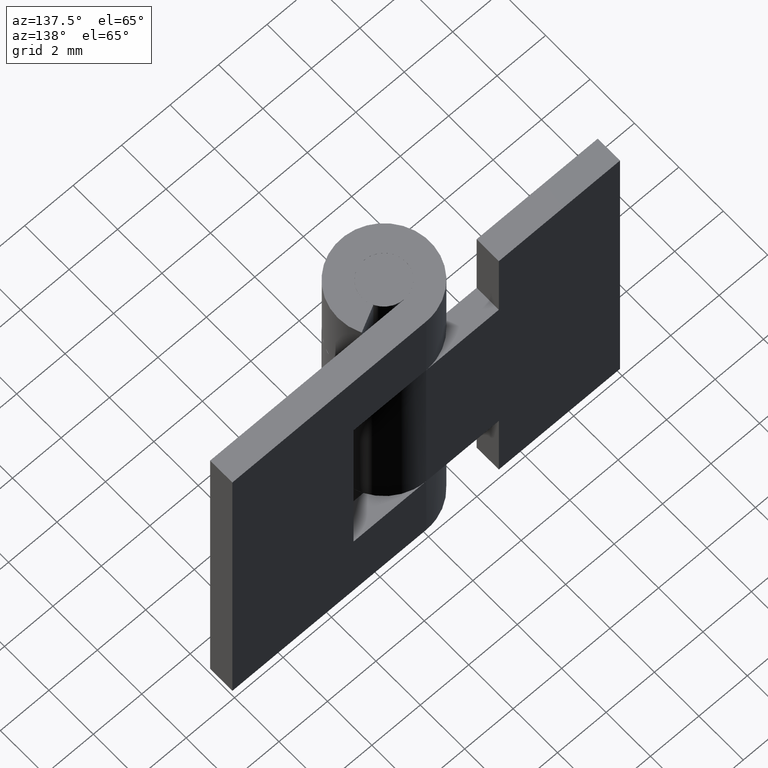
[diagram: clean part render]
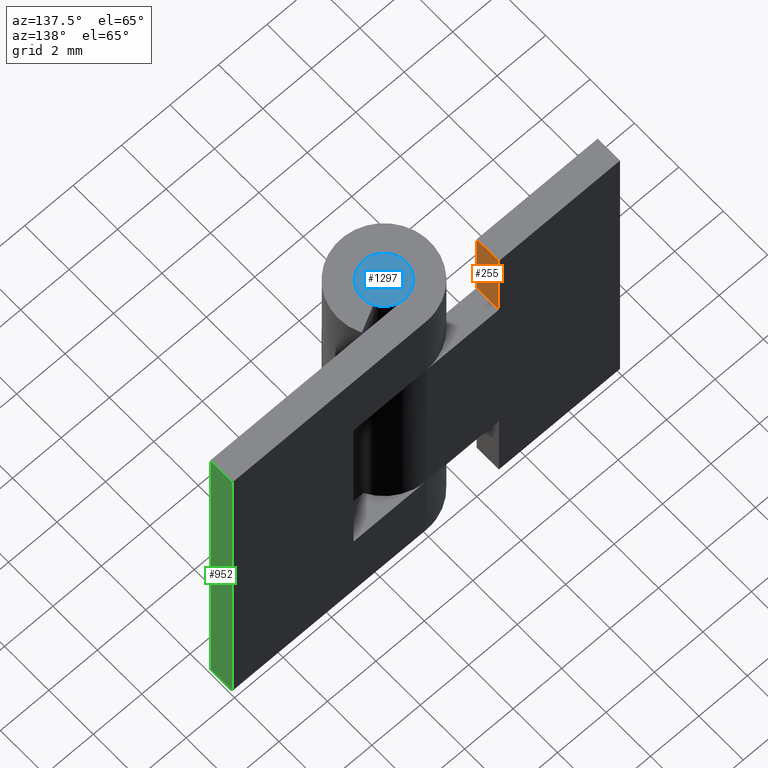
[diagram: same view with three faces highlighted in distinct colors, each labeled with its STEP entity id]
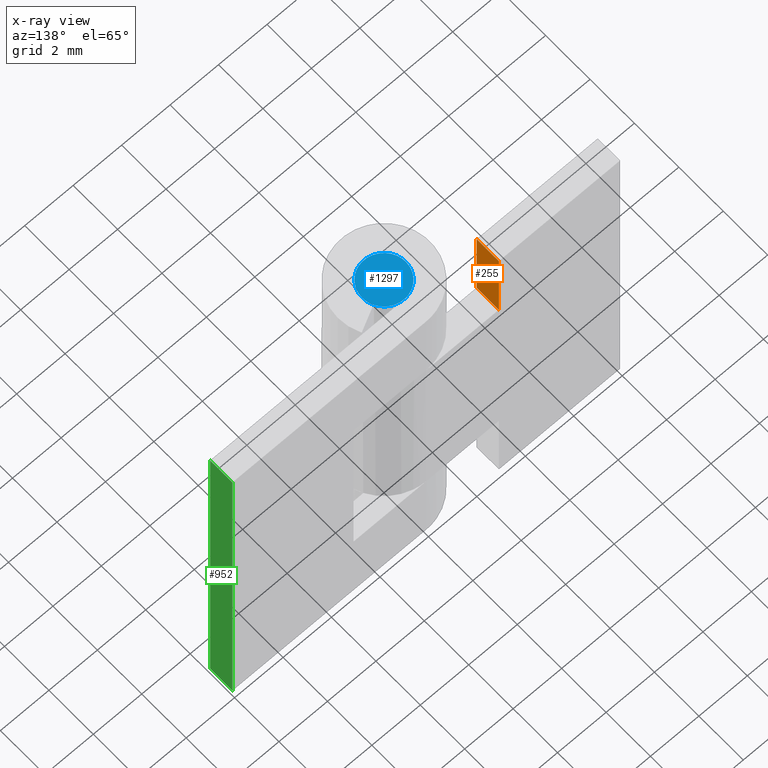
[diagram: x-ray of the same camera — body ghosted, the three highlighted faces saturated]
A machine part, auxiliary view with three faces highlighted in distinct colors.
The next image is the same camera in x-ray (body ghosted, the three faces saturated) — at least one of them is partly hidden behind the body in this view.
Their STEP definitions:

[orange] entity #255 — the highlighted face is a freeform B-spline surface patch.
#155=CARTESIAN_POINT('',(-3.0,1.900001999999955,11.500000000000000));
#156=VERTEX_POINT('',#155);
#164=CARTESIAN_POINT('',(-3.0,0.900001999999955,11.500000000000000));
#165=VERTEX_POINT('',#164);
#166=CARTESIAN_POINT('',(-3.0,0.900001999999955,11.500000000000000));
#167=CARTESIAN_POINT('',(-3.0,1.900001999999955,11.500000000000000));
#168=QUASI_UNIFORM_CURVE('',1,(#166,#167),.UNSPECIFIED.,.F.,.U.);
#169=EDGE_CURVE('',#165,#156,#168,.T.);
#228=CARTESIAN_POINT('',(-3.0,0.850052001938147,15.174824993216321));
#229=CARTESIAN_POINT('',(-3.0,0.850052001938147,11.325174912906361));
#230=CARTESIAN_POINT('',(-3.0,1.949952024883898,15.174824993216321));
#231=CARTESIAN_POINT('',(-3.0,1.949952024883898,11.325174912906361));
#232=B_SPLINE_SURFACE_WITH_KNOTS('',1,1,((#228,#230),(#229,#231)),.UNSPECIFIED.,.F.,.F.,.U.,(2,2),(2,2),(0.0,3.849650080309958),(0.041708334948495,0.958291687403247),.UNSPECIFIED.);
#233=ORIENTED_EDGE('',*,*,#169,.T.);
#234=CARTESIAN_POINT('',(-3.0,1.900002000000000,15.0));
#235=VERTEX_POINT('',#234);
#236=CARTESIAN_POINT('',(-3.0,1.900002000000000,15.0));
#237=CARTESIAN_POINT('',(-3.0,1.900001999999955,11.500000000000000));
#238=QUASI_UNIFORM_CURVE('',1,(#236,#237),.UNSPECIFIED.,.F.,.U.);
#239=EDGE_CURVE('',#235,#156,#238,.T.);
#240=ORIENTED_EDGE('',*,*,#239,.F.);
#241=CARTESIAN_POINT('',(-3.0,0.900001999999955,15.0));
#242=VERTEX_POINT('',#241);
#243=CARTESIAN_POINT('',(-3.0,0.900001999999955,15.0));
#244=CARTESIAN_POINT('',(-3.0,1.900002000000000,15.0));
#245=QUASI_UNIFORM_CURVE('',1,(#243,#244),.UNSPECIFIED.,.F.,.U.);
#246=EDGE_CURVE('',#242,#235,#245,.T.);
#247=ORIENTED_EDGE('',*,*,#246,.F.);
#248=CARTESIAN_POINT('',(-3.0,0.900001999999955,11.500000000000000));
#249=CARTESIAN_POINT('',(-3.0,0.900001999999955,15.0));
#250=QUASI_UNIFORM_CURVE('',1,(#248,#249),.UNSPECIFIED.,.F.,.U.);
#251=EDGE_CURVE('',#165,#242,#250,.T.);
#252=ORIENTED_EDGE('',*,*,#251,.F.);
#253=EDGE_LOOP('',(#233,#240,#247,#252));
#254=FACE_OUTER_BOUND('',#253,.T.);
#255=ADVANCED_FACE('',(#254),#232,.T.);

[blue] entity #1297 — the highlighted face is a freeform B-spline surface patch.
#1129=CARTESIAN_POINT('',(0.106230811220151,-0.893708573723844,15.0));
#1130=VERTEX_POINT('',#1129);
#1136=CARTESIAN_POINT('',(-0.900000000000000,0.0,15.0));
#1137=VERTEX_POINT('',#1136);
#1138=CARTESIAN_POINT('',(0.106230811220151,-0.893708573723844,15.000000000000002));
#1139=CARTESIAN_POINT('',(0.053301707716095,-0.900000000000000,15.0));
#1140=CARTESIAN_POINT('',(0.0,-0.900000000000000,15.0));
#1141=CARTESIAN_POINT('',(-0.900000000000000,-0.900000000000000,14.999999999999996));
#1142=CARTESIAN_POINT('',(-0.900000000000000,0.0,15.0));
#1150=(BOUNDED_CURVE()B_SPLINE_CURVE(2,(#1138,#1139,#1140,#1141,#1142),.UNSPECIFIED.,.F.,.U.)B_SPLINE_CURVE_WITH_KNOTS((3,2,3),(0.229562473504650,0.250000000000000,0.500000000000000),.UNSPECIFIED.)CURVE()GEOMETRIC_REPRESENTATION_ITEM()RATIONAL_B_SPLINE_CURVE((0.956026754166337,0.976055948320767,1.0,0.707106781186547,1.0))REPRESENTATION_ITEM(''));
#1151=EDGE_CURVE('',#1130,#1137,#1150,.T.);
#1153=CARTESIAN_POINT('',(-0.054943685588979,0.898321318579215,15.0));
#1154=VERTEX_POINT('',#1153);
#1155=CARTESIAN_POINT('',(-0.900000000000000,0.0,15.0));
#1156=CARTESIAN_POINT('',(-0.900000000000000,0.846635460200755,15.000000000000004));
#1157=CARTESIAN_POINT('',(-0.054943685588979,0.898321318579215,15.000000000000004));
#1165=(BOUNDED_CURVE()B_SPLINE_CURVE(2,(#1155,#1156,#1157),.UNSPECIFIED.,.F.,.U.)B_SPLINE_CURVE_WITH_KNOTS((3,3),(0.500000000000000,0.739332962239045),.UNSPECIFIED.)CURVE()GEOMETRIC_REPRESENTATION_ITEM()RATIONAL_B_SPLINE_CURVE((1.0,0.719603993286591,0.976072041666937))REPRESENTATION_ITEM(''));
#1166=EDGE_CURVE('',#1137,#1154,#1165,.T.);
#1240=CARTESIAN_POINT('',(0.900000000000000,0.0,15.0));
#1241=VERTEX_POINT('',#1240);
#1242=CARTESIAN_POINT('',(-0.054943685588979,0.898321318579215,15.000000000000002));
#1243=CARTESIAN_POINT('',(-0.027497486976359,0.900000000000000,15.000000000000004));
#1244=CARTESIAN_POINT('',(0.0,0.900000000000000,15.0));
#1245=CARTESIAN_POINT('',(0.900000000000000,0.900000000000000,14.999999999999996));
#1246=CARTESIAN_POINT('',(0.900000000000000,0.0,15.0));
#1254=(BOUNDED_CURVE()B_SPLINE_CURVE(2,(#1242,#1243,#1244,#1245,#1246),.UNSPECIFIED.,.F.,.U.)B_SPLINE_CURVE_WITH_KNOTS((3,2,3),(0.739332962239046,0.750000000000000,1.0),.UNSPECIFIED.)CURVE()GEOMETRIC_REPRESENTATION_ITEM()RATIONAL_B_SPLINE_CURVE((0.976072041666938,0.987502787899958,1.0,0.707106781186547,1.0))REPRESENTATION_ITEM(''));
#1255=EDGE_CURVE('',#1154,#1241,#1254,.T.);
#1257=CARTESIAN_POINT('',(0.900000000000000,0.0,15.0));
#1258=CARTESIAN_POINT('',(0.900000000000000,-0.799357073303865,14.999999999999996));
#1259=CARTESIAN_POINT('',(0.106230811220151,-0.893708573723844,15.000000000000002));
#1267=(BOUNDED_CURVE()B_SPLINE_CURVE(2,(#1257,#1258,#1259),.UNSPECIFIED.,.F.,.U.)B_SPLINE_CURVE_WITH_KNOTS((3,3),(0.0,0.229562473504650),.UNSPECIFIED.)CURVE()GEOMETRIC_REPRESENTATION_ITEM()RATIONAL_B_SPLINE_CURVE((1.0,0.731050832865780,0.956026754166337))REPRESENTATION_ITEM(''));
#1268=EDGE_CURVE('',#1241,#1130,#1267,.T.);
#1286=CARTESIAN_POINT('',(-0.989909973183274,-0.989893627390592,15.0));
#1287=CARTESIAN_POINT('',(0.989909908810258,-0.989893627390592,15.0));
#1288=CARTESIAN_POINT('',(-0.989909973183274,0.989888091311185,15.0));
#1289=CARTESIAN_POINT('',(0.989909908810258,0.989888091311185,15.0));
#1290=B_SPLINE_SURFACE_WITH_KNOTS('',1,1,((#1286,#1288),(#1287,#1289)),.UNSPECIFIED.,.F.,.F.,.U.,(2,2),(2,2),(0.0,1.979819881993532),(0.0,1.979781718701777),.UNSPECIFIED.);
#1291=ORIENTED_EDGE('',*,*,#1255,.F.);
#1292=ORIENTED_EDGE('',*,*,#1166,.F.);
#1293=ORIENTED_EDGE('',*,*,#1151,.F.);
#1294=ORIENTED_EDGE('',*,*,#1268,.F.);
#1295=EDGE_LOOP('',(#1291,#1292,#1293,#1294));
#1296=FACE_OUTER_BOUND('',#1295,.T.);
#1297=ADVANCED_FACE('',(#1296),#1290,.T.);

[green] entity #952 — the highlighted face is a freeform B-spline surface patch.
#674=CARTESIAN_POINT('',(8.0,1.900002000000000,0.0));
#675=VERTEX_POINT('',#674);
#681=CARTESIAN_POINT('',(8.0,0.900002000000000,0.0));
#682=VERTEX_POINT('',#681);
#683=CARTESIAN_POINT('',(8.0,1.900002000000000,0.0));
#684=CARTESIAN_POINT('',(8.0,0.900002000000000,0.0));
#685=QUASI_UNIFORM_CURVE('',1,(#683,#684),.UNSPECIFIED.,.F.,.U.);
#686=EDGE_CURVE('',#675,#682,#685,.T.);
#752=CARTESIAN_POINT('',(8.0,1.900002000000000,15.0));
#753=VERTEX_POINT('',#752);
#808=CARTESIAN_POINT('',(8.0,0.900002000000000,15.0));
#809=VERTEX_POINT('',#808);
#815=CARTESIAN_POINT('',(8.0,1.900002000000000,15.0));
#816=CARTESIAN_POINT('',(8.0,0.900002000000000,15.0));
#817=QUASI_UNIFORM_CURVE('',1,(#815,#816),.UNSPECIFIED.,.F.,.U.);
#818=EDGE_CURVE('',#753,#809,#817,.T.);
#923=CARTESIAN_POINT('',(8.0,0.900002000000000,15.0));
#924=CARTESIAN_POINT('',(8.0,0.900002000000000,0.0));
#925=QUASI_UNIFORM_CURVE('',1,(#923,#924),.UNSPECIFIED.,.F.,.U.);
#926=EDGE_CURVE('',#809,#682,#925,.T.);
#937=CARTESIAN_POINT('',(8.0,0.850052001938194,15.749249970927091));
#938=CARTESIAN_POINT('',(8.0,0.850052001938194,-0.749250373258442));
#939=CARTESIAN_POINT('',(8.0,1.949952024883896,15.749249970927091));
#940=CARTESIAN_POINT('',(8.0,1.949952024883896,-0.749250373258442));
#941=B_SPLINE_SURFACE_WITH_KNOTS('',1,1,((#937,#939),(#938,#940)),.UNSPECIFIED.,.F.,.F.,.U.,(2,2),(2,2),(0.0,16.498500344185530),(0.041708334948495,0.958291687403247),.UNSPECIFIED.);
#942=ORIENTED_EDGE('',*,*,#686,.F.);
#943=CARTESIAN_POINT('',(8.0,1.900002000000000,15.0));
#944=CARTESIAN_POINT('',(8.0,1.900002000000000,0.0));
#945=QUASI_UNIFORM_CURVE('',1,(#943,#944),.UNSPECIFIED.,.F.,.U.);
#946=EDGE_CURVE('',#753,#675,#945,.T.);
#947=ORIENTED_EDGE('',*,*,#946,.F.);
#948=ORIENTED_EDGE('',*,*,#818,.T.);
#949=ORIENTED_EDGE('',*,*,#926,.T.);
#950=EDGE_LOOP('',(#942,#947,#948,#949));
#951=FACE_OUTER_BOUND('',#950,.T.);
#952=ADVANCED_FACE('',(#951),#941,.T.);